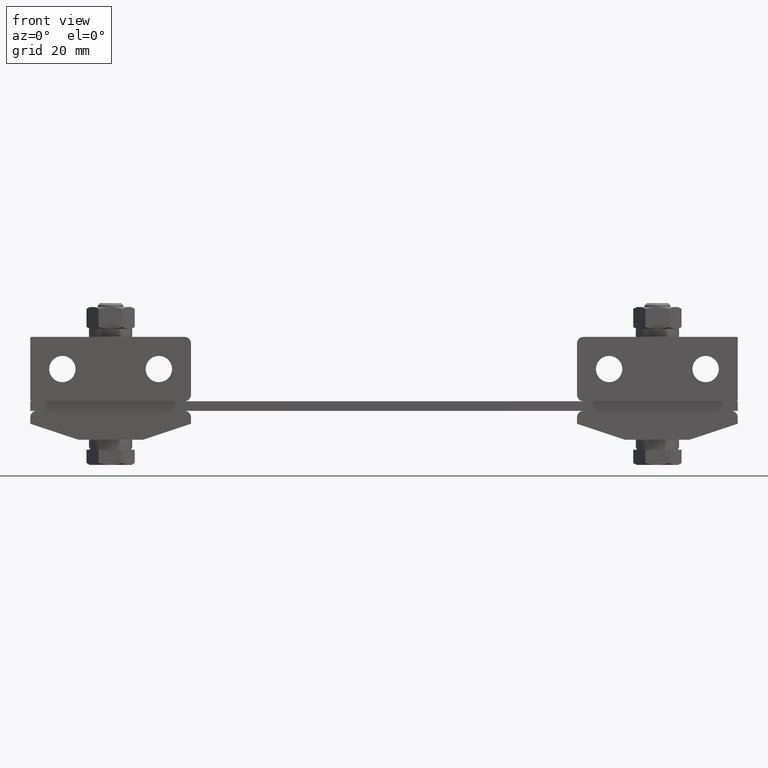
[diagram: clean part render]
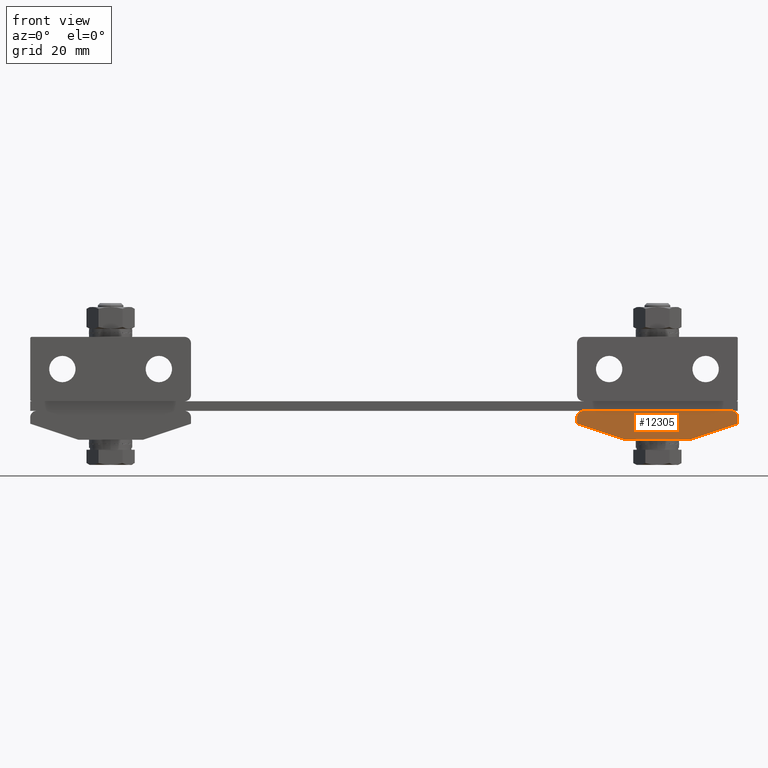
[diagram: same view with one face highlighted and labeled with its STEP entity id]
A machine part, front view. The second image highlights one B-rep face of the part: STEP entity #12305.
In plain terms, the highlighted planar face has unit normal (0, 1, 0).
Its self-contained STEP definition (entity closure, byte-faithful):
#87 = AXIS2_PLACEMENT_3D ( 'NONE', #8505, #3882, #8648 ) ;
#401 = CARTESIAN_POINT ( 'NONE',  ( 60.00000000000000000, -12.50000000000000000, 0.0000000000000000000 ) ) ;
#659 = LINE ( 'NONE', #15798, #17690 ) ;
#792 = CARTESIAN_POINT ( 'NONE',  ( 95.00000000000000000, -12.50000000000000000, -9.000000000000000000 ) ) ;
#1323 = CARTESIAN_POINT ( 'NONE',  ( 60.00000000000000000, -12.50000000000000000, -4.000000000000000000 ) ) ;
#1376 = ORIENTED_EDGE ( 'NONE', *, *, #9520, .T. ) ;
#1658 = FACE_OUTER_BOUND ( 'NONE', #19057, .T. ) ;
#1924 = VECTOR ( 'NONE', #13563, 999.9999999999998900 ) ;
#2335 = CARTESIAN_POINT ( 'NONE',  ( 60.00000000000000000, -12.50000000000000000, -9.000000000000000000 ) ) ;
#2441 = CIRCLE ( 'NONE', #18660, 2.000000000000000000 ) ;
#2661 = VERTEX_POINT ( 'NONE', #15282 ) ;
#2676 = CARTESIAN_POINT ( 'NONE',  ( 66.19999999999998900, -12.50000000000000000, -18.59999999999999800 ) ) ;
#2980 = CARTESIAN_POINT ( 'NONE',  ( 60.00000000000000000, -12.50000000000000000, -2.000000000000000000 ) ) ;
#3172 = CARTESIAN_POINT ( 'NONE',  ( 58.79999999999999700, -12.50000000000000000, -3.600000000000000100 ) ) ;
#3362 = CIRCLE ( 'NONE', #87, 2.000000000000000000 ) ;
#3882 = DIRECTION ( 'NONE',  ( -0.0000000000000000000, -1.000000000000000000, -0.0000000000000000000 ) ) ;
#3893 = EDGE_CURVE ( 'NONE', #11665, #18397, #16661, .T. ) ;
#4822 = CARTESIAN_POINT ( 'NONE',  ( 110.0000000000000000, -12.50000000000000000, -4.000000000000000000 ) ) ;
#5029 = ORIENTED_EDGE ( 'NONE', *, *, #8270, .F. ) ;
#5240 = DIRECTION ( 'NONE',  ( 1.000000000000000000, 0.0000000000000000000, 0.0000000000000000000 ) ) ;
#5529 = ORIENTED_EDGE ( 'NONE', *, *, #14050, .T. ) ;
#6639 = CARTESIAN_POINT ( 'NONE',  ( 60.00000000000000000, -12.50000000000000000, 0.0000000000000000000 ) ) ;
#7037 = LINE ( 'NONE', #2676, #1924 ) ;
#7922 = EDGE_CURVE ( 'NONE', #10848, #18397, #3362, .T. ) ;
#8270 = EDGE_CURVE ( 'NONE', #10848, #16922, #659, .T. ) ;
#8415 = VECTOR ( 'NONE', #11525, 1000.000000000000000 ) ;
#8505 = CARTESIAN_POINT ( 'NONE',  ( 108.0000000000000000, -12.50000000000000000, -2.000000000000000000 ) ) ;
#8648 = DIRECTION ( 'NONE',  ( 0.0000000000000000000, 0.0000000000000000000, 1.000000000000000000 ) ) ;
#8917 = VECTOR ( 'NONE', #12783, 1000.000000000000000 ) ;
#9116 = ORIENTED_EDGE ( 'NONE', *, *, #7922, .T. ) ;
#9175 = ORIENTED_EDGE ( 'NONE', *, *, #13150, .T. ) ;
#9520 = EDGE_CURVE ( 'NONE', #14206, #11966, #14008, .T. ) ;
#9832 = DIRECTION ( 'NONE',  ( 0.0000000000000000000, 0.0000000000000000000, 1.000000000000000000 ) ) ;
#9852 = DIRECTION ( 'NONE',  ( 0.9486832980505137700, 0.0000000000000000000, -0.3162277660168380000 ) ) ;
#10016 = CARTESIAN_POINT ( 'NONE',  ( 108.0000000000000000, -12.50000000000000000, 0.0000000000000000000 ) ) ;
#10258 = CARTESIAN_POINT ( 'NONE',  ( 62.00000000000000000, -12.50000000000000000, -2.000000000000000000 ) ) ;
#10621 = LINE ( 'NONE', #3172, #10851 ) ;
#10848 = VERTEX_POINT ( 'NONE', #18441 ) ;
#10851 = VECTOR ( 'NONE', #9852, 999.9999999999998900 ) ;
#11334 = DIRECTION ( 'NONE',  ( 0.0000000000000000000, 1.000000000000000000, 0.0000000000000000000 ) ) ;
#11525 = DIRECTION ( 'NONE',  ( 1.000000000000000000, 0.0000000000000000000, 0.0000000000000000000 ) ) ;
#11594 = CARTESIAN_POINT ( 'NONE',  ( 60.00000000000000000, -12.50000000000000000, 0.0000000000000000000 ) ) ;
#11665 = VERTEX_POINT ( 'NONE', #13891 ) ;
#11966 = VERTEX_POINT ( 'NONE', #1323 ) ;
#12169 = ORIENTED_EDGE ( 'NONE', *, *, #15165, .T. ) ;
#12305 = ADVANCED_FACE ( 'NONE', ( #1658 ), #16105, .F. ) ;
#12365 = ORIENTED_EDGE ( 'NONE', *, *, #19933, .T. ) ;
#12472 = AXIS2_PLACEMENT_3D ( 'NONE', #401, #11334, #9832 ) ;
#12783 = DIRECTION ( 'NONE',  ( 0.0000000000000000000, 0.0000000000000000000, -1.000000000000000000 ) ) ;
#13084 = ORIENTED_EDGE ( 'NONE', *, *, #3893, .F. ) ;
#13150 = EDGE_CURVE ( 'NONE', #11966, #2661, #10621, .T. ) ;
#13442 = DIRECTION ( 'NONE',  ( -0.0000000000000000000, -1.000000000000000000, -0.0000000000000000000 ) ) ;
#13563 = DIRECTION ( 'NONE',  ( 0.9486832980505137700, 0.0000000000000000000, 0.3162277660168380000 ) ) ;
#13891 = CARTESIAN_POINT ( 'NONE',  ( 62.00000000000000000, -12.50000000000000000, 0.0000000000000000000 ) ) ;
#14008 = LINE ( 'NONE', #6639, #8917 ) ;
#14050 = EDGE_CURVE ( 'NONE', #2661, #18337, #17552, .T. ) ;
#14206 = VERTEX_POINT ( 'NONE', #2980 ) ;
#15165 = EDGE_CURVE ( 'NONE', #18337, #16922, #7037, .T. ) ;
#15282 = CARTESIAN_POINT ( 'NONE',  ( 75.00000000000000000, -12.50000000000000000, -9.000000000000000000 ) ) ;
#15798 = CARTESIAN_POINT ( 'NONE',  ( 110.0000000000000000, -12.50000000000000000, 0.0000000000000000000 ) ) ;
#15852 = VECTOR ( 'NONE', #5240, 1000.000000000000000 ) ;
#16105 = PLANE ( 'NONE',  #12472 ) ;
#16534 = DIRECTION ( 'NONE',  ( 0.0000000000000000000, 0.0000000000000000000, 1.000000000000000000 ) ) ;
#16661 = LINE ( 'NONE', #11594, #8415 ) ;
#16922 = VERTEX_POINT ( 'NONE', #4822 ) ;
#17243 = DIRECTION ( 'NONE',  ( 0.0000000000000000000, 0.0000000000000000000, -1.000000000000000000 ) ) ;
#17552 = LINE ( 'NONE', #2335, #15852 ) ;
#17690 = VECTOR ( 'NONE', #17243, 1000.000000000000000 ) ;
#18337 = VERTEX_POINT ( 'NONE', #792 ) ;
#18397 = VERTEX_POINT ( 'NONE', #10016 ) ;
#18441 = CARTESIAN_POINT ( 'NONE',  ( 110.0000000000000000, -12.50000000000000000, -2.000000000000000000 ) ) ;
#18660 = AXIS2_PLACEMENT_3D ( 'NONE', #10258, #13442, #16534 ) ;
#19057 = EDGE_LOOP ( 'NONE', ( #5029, #9116, #13084, #12365, #1376, #9175, #5529, #12169 ) ) ;
#19933 = EDGE_CURVE ( 'NONE', #11665, #14206, #2441, .T. ) ;